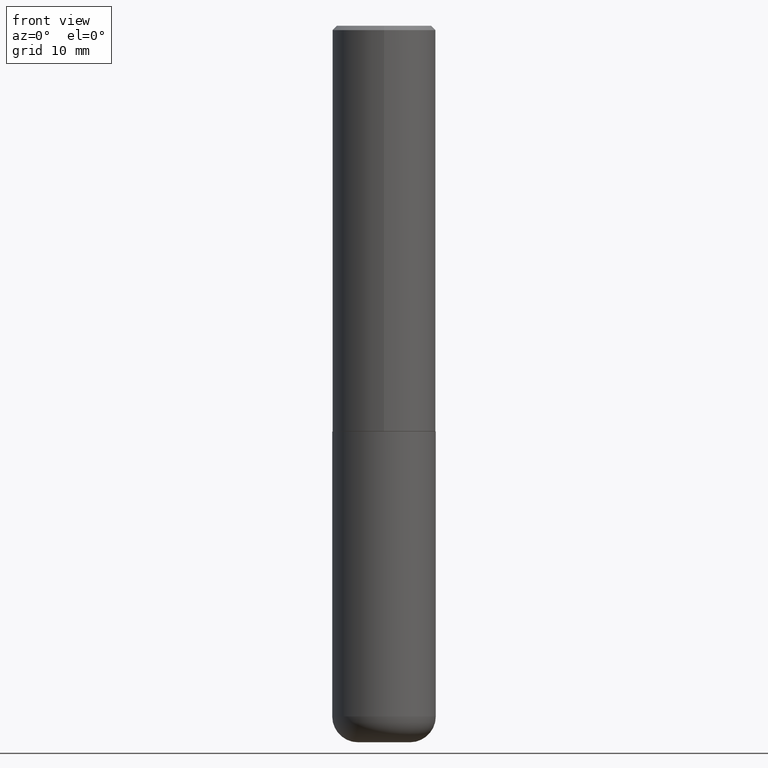
[diagram: clean part render]
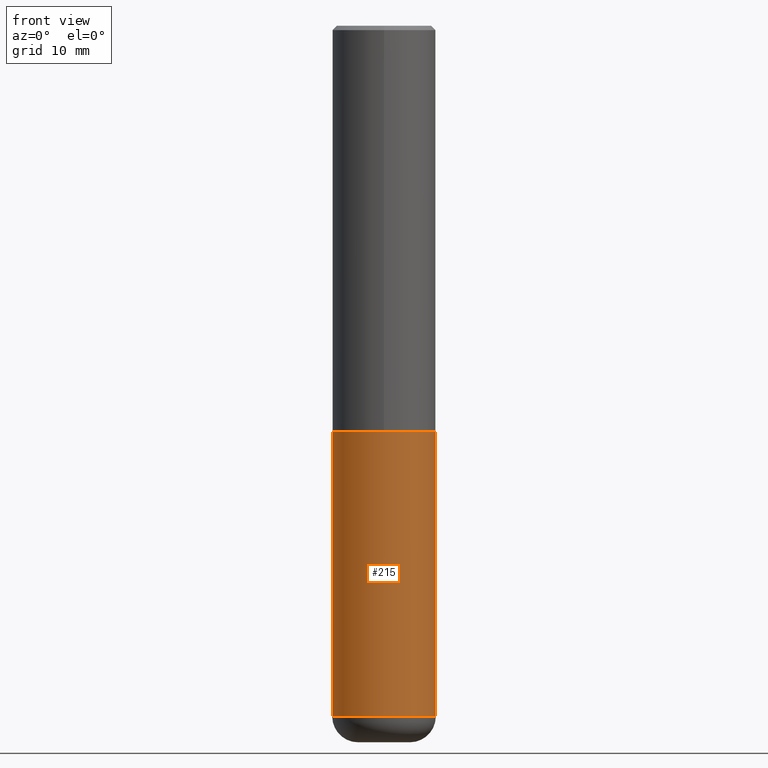
[diagram: same view with one face highlighted and labeled with its STEP entity id]
A machine part, front view. The second image highlights one B-rep face of the part: STEP entity #215.
In plain terms, the highlighted cylindrical surface (partial cylindrical patch) has radius 5.9995 mm, axis along (-0, 0, 1).
Its self-contained STEP definition (entity closure, byte-faithful):
#20 = CARTESIAN_POINT ( 'NONE',  ( 4.525095478964977394E-29, -6.460637069395357576E-15, -1.850400000000000267 ) ) ;
#62 = DIRECTION ( 'NONE',  ( -2.445468806185136877E-29, 3.491481338843145188E-15, 1.000000000000000000 ) ) ;
#63 = AXIS2_PLACEMENT_3D ( 'NONE', #20, #145, #401 ) ;
#96 = EDGE_CURVE ( 'NONE', #230, #128, #207, .T. ) ;
#117 = LINE ( 'NONE', #245, #353 ) ;
#128 = VERTEX_POINT ( 'NONE', #243 ) ;
#131 = AXIS2_PLACEMENT_3D ( 'NONE', #291, #416, #262 ) ;
#145 = DIRECTION ( 'NONE',  ( -2.445468806185136597E-29, 3.491481338843145583E-15, 1.000000000000000000 ) ) ;
#156 = EDGE_LOOP ( 'NONE', ( #159, #194, #284, #251 ) ) ;
#159 = ORIENTED_EDGE ( 'NONE', *, *, #96, .F. ) ;
#161 = CARTESIAN_POINT ( 'NONE',  ( 0.000000000000000000, 0.000000000000000000, 0.000000000000000000 ) ) ;
#163 = CARTESIAN_POINT ( 'NONE',  ( 0.2361999999999999933, -8.110012853864854101E-15, -1.850400000000000267 ) ) ;
#175 = CARTESIAN_POINT ( 'NONE',  ( 0.2361999999999998823, -1.264614540928986883E-14, -3.149600000000000399 ) ) ;
#178 = DIRECTION ( 'NONE',  ( -2.445468806185136877E-29, 3.491481338843145188E-15, 1.000000000000000000 ) ) ;
#181 = DIRECTION ( 'NONE',  ( -2.445468806185136597E-29, 3.491481338843145583E-15, 1.000000000000000000 ) ) ;
#187 = VERTEX_POINT ( 'NONE', #175 ) ;
#189 = EDGE_CURVE ( 'NONE', #128, #258, #409, .T. ) ;
#194 = ORIENTED_EDGE ( 'NONE', *, *, #228, .T. ) ;
#195 = CYLINDRICAL_SURFACE ( 'NONE', #347, 0.2361999999999999933 ) ;
#198 = EDGE_CURVE ( 'NONE', #187, #258, #117, .T. ) ;
#203 = VECTOR ( 'NONE', #178, 39.37007874015748143 ) ;
#207 = LINE ( 'NONE', #331, #203 ) ;
#215 = ADVANCED_FACE ( 'NONE', ( #294 ), #195, .T. ) ;
#228 = EDGE_CURVE ( 'NONE', #230, #187, #293, .T. ) ;
#230 = VERTEX_POINT ( 'NONE', #381 ) ;
#243 = CARTESIAN_POINT ( 'NONE',  ( -0.2361999999999999933, -7.050401405242508548E-15, -1.850400000000000267 ) ) ;
#245 = CARTESIAN_POINT ( 'NONE',  ( 0.2361999999999999933, -1.649375784469496131E-15, 1.151752954443000088E-29 ) ) ;
#251 = ORIENTED_EDGE ( 'NONE', *, *, #189, .F. ) ;
#258 = VERTEX_POINT ( 'NONE', #163 ) ;
#262 = DIRECTION ( 'NONE',  ( 1.000000000000000000, -6.982962677686264344E-15, 0.000000000000000000 ) ) ;
#284 = ORIENTED_EDGE ( 'NONE', *, *, #198, .T. ) ;
#291 = CARTESIAN_POINT ( 'NONE',  ( 7.702248551960706711E-29, -1.099676962482037231E-14, -3.149600000000000399 ) ) ;
#293 = CIRCLE ( 'NONE', #131, 0.2362000000000000210 ) ;
#294 = FACE_OUTER_BOUND ( 'NONE', #156, .T. ) ;
#311 = DIRECTION ( 'NONE',  ( 1.000000000000000000, -6.982962677686266711E-15, 4.876176775795936353E-29 ) ) ;
#331 = CARTESIAN_POINT ( 'NONE',  ( -0.2361999999999999933, 1.678301941865356591E-15, -1.161852468318208757E-29 ) ) ;
#347 = AXIS2_PLACEMENT_3D ( 'NONE', #161, #181, #311 ) ;
#353 = VECTOR ( 'NONE', #62, 39.37007874015748143 ) ;
#381 = CARTESIAN_POINT ( 'NONE',  ( -0.2361999999999998823, -9.318467682955017493E-15, -3.149600000000000399 ) ) ;
#401 = DIRECTION ( 'NONE',  ( 1.000000000000000000, -6.982962677686269077E-15, 0.000000000000000000 ) ) ;
#409 = CIRCLE ( 'NONE', #63, 0.2361999999999999933 ) ;
#416 = DIRECTION ( 'NONE',  ( -2.445468806185136597E-29, 3.491481338843145583E-15, 1.000000000000000000 ) ) ;